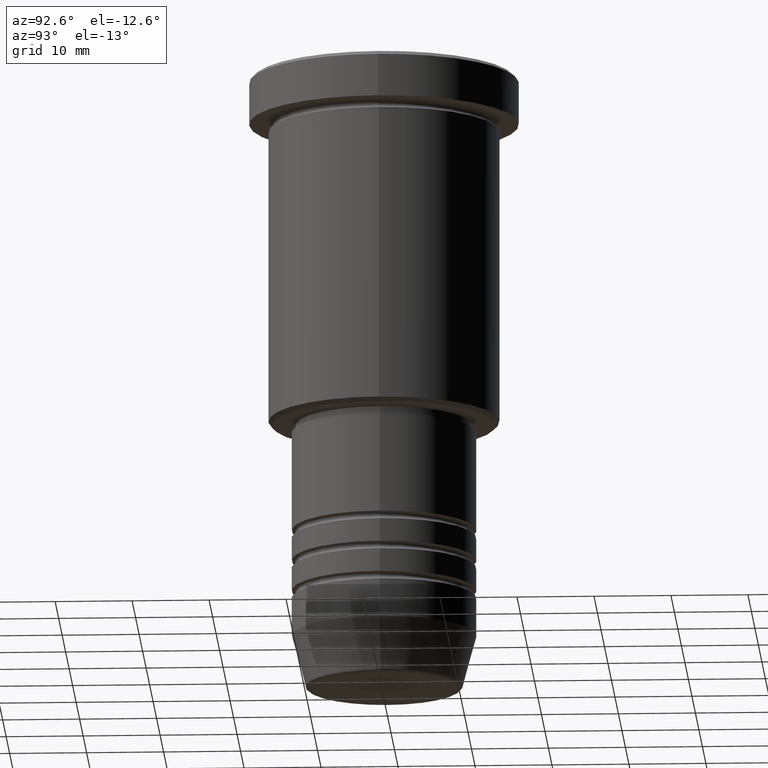
[diagram: clean part render]
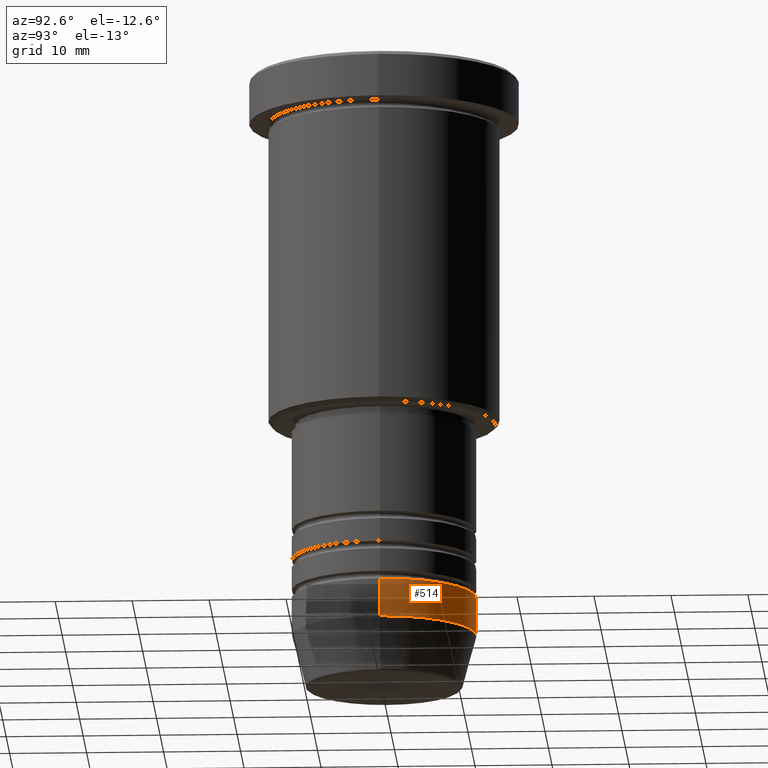
[diagram: same view with one face highlighted and labeled with its STEP entity id]
A machine part, auxiliary view. The second image highlights one B-rep face of the part: STEP entity #514.
In plain terms, the highlighted cylindrical surface (partial cylindrical patch) has radius 12 mm, axis along (-0, -0, 1).
Its self-contained STEP definition (entity closure, byte-faithful):
#26 = AXIS2_PLACEMENT_3D ( 'NONE', #758, #948, #387 ) ;
#39 = DIRECTION ( 'NONE',  ( 1.000000000000000000, 0.000000000000000000, 0.000000000000000000 ) ) ;
#85 = CIRCLE ( 'NONE', #239, 12.00000000000000000 ) ;
#109 = ORIENTED_EDGE ( 'NONE', *, *, #1183, .T. ) ;
#150 = EDGE_CURVE ( 'NONE', #666, #466, #1156, .T. ) ;
#207 = CYLINDRICAL_SURFACE ( 'NONE', #26, 12.00000000000000000 ) ;
#209 = CARTESIAN_POINT ( 'NONE',  ( 0.000000000000000000, 0.000000000000000000, -69.00000000000000000 ) ) ;
#211 = CARTESIAN_POINT ( 'NONE',  ( 12.00000000000000000, 0.000000000000000000, -74.00000000000001421 ) ) ;
#239 = AXIS2_PLACEMENT_3D ( 'NONE', #462, #451, #841 ) ;
#283 = CARTESIAN_POINT ( 'NONE',  ( -12.00000000000000000, 1.469576158976823947E-15, 0.000000000000000000 ) ) ;
#387 = DIRECTION ( 'NONE',  ( 1.000000000000000000, 0.000000000000000000, 0.000000000000000000 ) ) ;
#394 = LINE ( 'NONE', #672, #409 ) ;
#406 = AXIS2_PLACEMENT_3D ( 'NONE', #209, #943, #39 ) ;
#409 = VECTOR ( 'NONE', #1126, 1000.000000000000000 ) ;
#451 = DIRECTION ( 'NONE',  ( -0.000000000000000000, -0.000000000000000000, 1.000000000000000000 ) ) ;
#456 = CARTESIAN_POINT ( 'NONE',  ( -12.00000000000000000, 1.469576158976823947E-15, -74.00000000000001421 ) ) ;
#462 = CARTESIAN_POINT ( 'NONE',  ( 0.000000000000000000, 0.000000000000000000, -74.00000000000001421 ) ) ;
#466 = VERTEX_POINT ( 'NONE', #556 ) ;
#492 = EDGE_CURVE ( 'NONE', #913, #502, #85, .T. ) ;
#502 = VERTEX_POINT ( 'NONE', #456 ) ;
#514 = ADVANCED_FACE ( 'NONE', ( #578 ), #207, .T. ) ;
#556 = CARTESIAN_POINT ( 'NONE',  ( -12.00000000000000000, 1.469576158976823947E-15, -69.00000000000000000 ) ) ;
#565 = VECTOR ( 'NONE', #648, 1000.000000000000000 ) ;
#578 = FACE_OUTER_BOUND ( 'NONE', #1125, .T. ) ;
#648 = DIRECTION ( 'NONE',  ( -0.000000000000000000, -0.000000000000000000, 1.000000000000000000 ) ) ;
#666 = VERTEX_POINT ( 'NONE', #899 ) ;
#671 = ORIENTED_EDGE ( 'NONE', *, *, #150, .F. ) ;
#672 = CARTESIAN_POINT ( 'NONE',  ( 12.00000000000000000, 0.000000000000000000, 0.000000000000000000 ) ) ;
#737 = LINE ( 'NONE', #283, #565 ) ;
#758 = CARTESIAN_POINT ( 'NONE',  ( 0.000000000000000000, 0.000000000000000000, 0.000000000000000000 ) ) ;
#781 = ORIENTED_EDGE ( 'NONE', *, *, #492, .T. ) ;
#841 = DIRECTION ( 'NONE',  ( 1.000000000000000000, 0.000000000000000000, 0.000000000000000000 ) ) ;
#857 = EDGE_CURVE ( 'NONE', #913, #666, #394, .T. ) ;
#899 = CARTESIAN_POINT ( 'NONE',  ( 12.00000000000000000, 0.000000000000000000, -69.00000000000000000 ) ) ;
#913 = VERTEX_POINT ( 'NONE', #211 ) ;
#940 = ORIENTED_EDGE ( 'NONE', *, *, #857, .F. ) ;
#943 = DIRECTION ( 'NONE',  ( -0.000000000000000000, -0.000000000000000000, 1.000000000000000000 ) ) ;
#948 = DIRECTION ( 'NONE',  ( -0.000000000000000000, -0.000000000000000000, 1.000000000000000000 ) ) ;
#1125 = EDGE_LOOP ( 'NONE', ( #781, #109, #671, #940 ) ) ;
#1126 = DIRECTION ( 'NONE',  ( -0.000000000000000000, -0.000000000000000000, 1.000000000000000000 ) ) ;
#1156 = CIRCLE ( 'NONE', #406, 12.00000000000000000 ) ;
#1183 = EDGE_CURVE ( 'NONE', #502, #466, #737, .T. ) ;